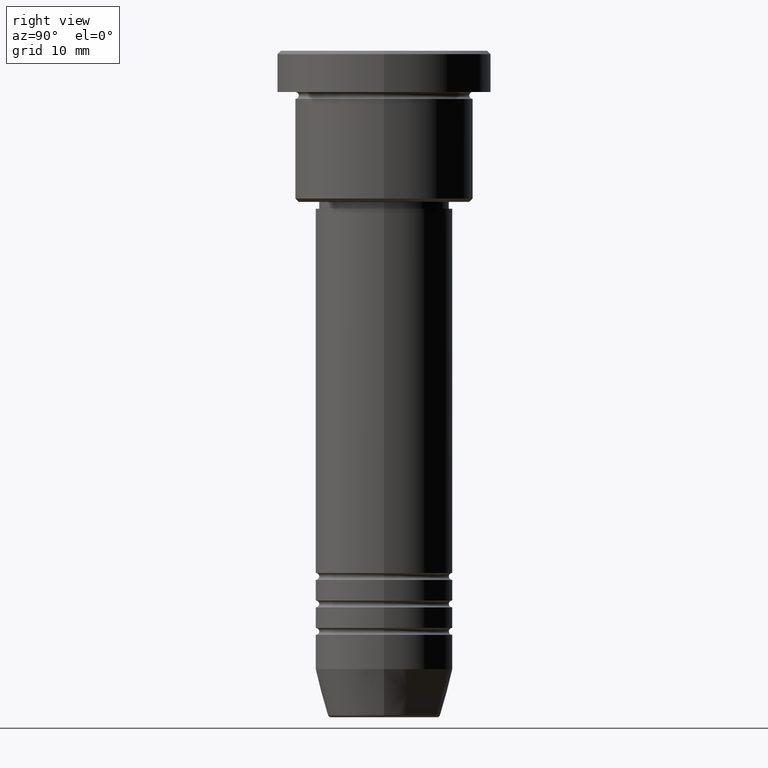
[diagram: clean part render]
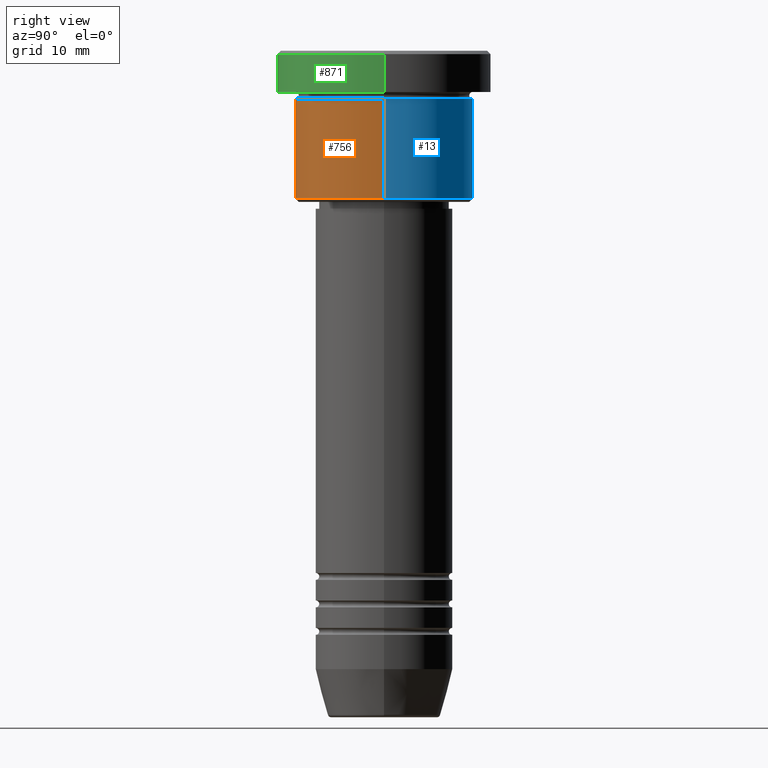
[diagram: same view with three faces highlighted in distinct colors, each labeled with its STEP entity id]
A machine part, right view with three faces highlighted in distinct colors.
Their STEP definitions:

[orange] entity #756 — the highlighted cylindrical surface (partial cylindrical patch) has radius 13 mm, axis along (-0, -0, 1).
#57 = CIRCLE ( 'NONE', #1114, 13.00000000000000178 ) ;
#133 = DIRECTION ( 'NONE',  ( -0.000000000000000000, -0.000000000000000000, 1.000000000000000000 ) ) ;
#156 = CIRCLE ( 'NONE', #711, 13.00000000000000178 ) ;
#172 = ORIENTED_EDGE ( 'NONE', *, *, #490, .F. ) ;
#240 = EDGE_CURVE ( 'NONE', #298, #316, #57, .T. ) ;
#272 = CARTESIAN_POINT ( 'NONE',  ( 0.000000000000000000, 0.000000000000000000, -21.50000000000000355 ) ) ;
#298 = VERTEX_POINT ( 'NONE', #1177 ) ;
#299 = DIRECTION ( 'NONE',  ( -0.000000000000000000, -0.000000000000000000, 1.000000000000000000 ) ) ;
#303 = ORIENTED_EDGE ( 'NONE', *, *, #630, .T. ) ;
#316 = VERTEX_POINT ( 'NONE', #830 ) ;
#322 = CARTESIAN_POINT ( 'NONE',  ( -13.00000000000000178, 1.592040838891559293E-15, -21.50000000000000355 ) ) ;
#446 = DIRECTION ( 'NONE',  ( 1.000000000000000000, 0.000000000000000000, 0.000000000000000000 ) ) ;
#448 = DIRECTION ( 'NONE',  ( -1.000000000000000000, 0.000000000000000000, 0.000000000000000000 ) ) ;
#490 = EDGE_CURVE ( 'NONE', #966, #298, #976, .T. ) ;
#569 = CYLINDRICAL_SURFACE ( 'NONE', #807, 13.00000000000000178 ) ;
#630 = EDGE_CURVE ( 'NONE', #966, #858, #156, .T. ) ;
#648 = CARTESIAN_POINT ( 'NONE',  ( 0.000000000000000000, 0.000000000000000000, 0.000000000000000000 ) ) ;
#655 = DIRECTION ( 'NONE',  ( 1.000000000000000000, 0.000000000000000000, 0.000000000000000000 ) ) ;
#677 = ORIENTED_EDGE ( 'NONE', *, *, #776, .T. ) ;
#691 = VECTOR ( 'NONE', #299, 1000.000000000000000 ) ;
#707 = DIRECTION ( 'NONE',  ( -0.000000000000000000, -0.000000000000000000, 1.000000000000000000 ) ) ;
#711 = AXIS2_PLACEMENT_3D ( 'NONE', #272, #707, #448 ) ;
#741 = ORIENTED_EDGE ( 'NONE', *, *, #240, .F. ) ;
#751 = EDGE_LOOP ( 'NONE', ( #172, #303, #677, #741 ) ) ;
#756 = ADVANCED_FACE ( 'NONE', ( #922 ), #569, .T. ) ;
#776 = EDGE_CURVE ( 'NONE', #858, #316, #835, .T. ) ;
#799 = CARTESIAN_POINT ( 'NONE',  ( 0.000000000000000000, 0.000000000000000000, -6.999999999999995559 ) ) ;
#807 = AXIS2_PLACEMENT_3D ( 'NONE', #648, #842, #655 ) ;
#830 = CARTESIAN_POINT ( 'NONE',  ( 13.00000000000000178, 0.000000000000000000, -6.999999999999995559 ) ) ;
#835 = LINE ( 'NONE', #1021, #691 ) ;
#842 = DIRECTION ( 'NONE',  ( -0.000000000000000000, -0.000000000000000000, 1.000000000000000000 ) ) ;
#858 = VERTEX_POINT ( 'NONE', #1017 ) ;
#872 = CARTESIAN_POINT ( 'NONE',  ( -13.00000000000000178, 1.592040838891559293E-15, 0.000000000000000000 ) ) ;
#874 = DIRECTION ( 'NONE',  ( -0.000000000000000000, -0.000000000000000000, 1.000000000000000000 ) ) ;
#922 = FACE_OUTER_BOUND ( 'NONE', #751, .T. ) ;
#966 = VERTEX_POINT ( 'NONE', #322 ) ;
#976 = LINE ( 'NONE', #872, #1073 ) ;
#1017 = CARTESIAN_POINT ( 'NONE',  ( 13.00000000000000178, 0.000000000000000000, -21.50000000000000355 ) ) ;
#1021 = CARTESIAN_POINT ( 'NONE',  ( 13.00000000000000178, 0.000000000000000000, 0.000000000000000000 ) ) ;
#1073 = VECTOR ( 'NONE', #133, 1000.000000000000000 ) ;
#1114 = AXIS2_PLACEMENT_3D ( 'NONE', #799, #874, #446 ) ;
#1177 = CARTESIAN_POINT ( 'NONE',  ( -13.00000000000000178, 1.592040838891559293E-15, -6.999999999999995559 ) ) ;

[blue] entity #13 — the highlighted cylindrical surface (partial cylindrical patch) has radius 13 mm, axis along (-0, -0, 1).
#13 = ADVANCED_FACE ( 'NONE', ( #1102 ), #390, .T. ) ;
#90 = CARTESIAN_POINT ( 'NONE',  ( 0.000000000000000000, 0.000000000000000000, 0.000000000000000000 ) ) ;
#133 = DIRECTION ( 'NONE',  ( -0.000000000000000000, -0.000000000000000000, 1.000000000000000000 ) ) ;
#165 = EDGE_CURVE ( 'NONE', #316, #298, #347, .T. ) ;
#173 = AXIS2_PLACEMENT_3D ( 'NONE', #90, #551, #758 ) ;
#264 = DIRECTION ( 'NONE',  ( -0.000000000000000000, -0.000000000000000000, 1.000000000000000000 ) ) ;
#298 = VERTEX_POINT ( 'NONE', #1177 ) ;
#299 = DIRECTION ( 'NONE',  ( -0.000000000000000000, -0.000000000000000000, 1.000000000000000000 ) ) ;
#316 = VERTEX_POINT ( 'NONE', #830 ) ;
#322 = CARTESIAN_POINT ( 'NONE',  ( -13.00000000000000178, 1.592040838891559293E-15, -21.50000000000000355 ) ) ;
#324 = ORIENTED_EDGE ( 'NONE', *, *, #165, .F. ) ;
#336 = EDGE_CURVE ( 'NONE', #858, #966, #1129, .T. ) ;
#347 = CIRCLE ( 'NONE', #997, 13.00000000000000178 ) ;
#390 = CYLINDRICAL_SURFACE ( 'NONE', #173, 13.00000000000000178 ) ;
#457 = EDGE_LOOP ( 'NONE', ( #475, #568, #324, #501 ) ) ;
#475 = ORIENTED_EDGE ( 'NONE', *, *, #336, .T. ) ;
#479 = AXIS2_PLACEMENT_3D ( 'NONE', #1107, #539, #924 ) ;
#490 = EDGE_CURVE ( 'NONE', #966, #298, #976, .T. ) ;
#501 = ORIENTED_EDGE ( 'NONE', *, *, #776, .F. ) ;
#515 = DIRECTION ( 'NONE',  ( 1.000000000000000000, 0.000000000000000000, 0.000000000000000000 ) ) ;
#539 = DIRECTION ( 'NONE',  ( -0.000000000000000000, -0.000000000000000000, 1.000000000000000000 ) ) ;
#551 = DIRECTION ( 'NONE',  ( -0.000000000000000000, -0.000000000000000000, 1.000000000000000000 ) ) ;
#568 = ORIENTED_EDGE ( 'NONE', *, *, #490, .T. ) ;
#691 = VECTOR ( 'NONE', #299, 1000.000000000000000 ) ;
#703 = CARTESIAN_POINT ( 'NONE',  ( 0.000000000000000000, 0.000000000000000000, -6.999999999999995559 ) ) ;
#758 = DIRECTION ( 'NONE',  ( 1.000000000000000000, 0.000000000000000000, 0.000000000000000000 ) ) ;
#776 = EDGE_CURVE ( 'NONE', #858, #316, #835, .T. ) ;
#830 = CARTESIAN_POINT ( 'NONE',  ( 13.00000000000000178, 0.000000000000000000, -6.999999999999995559 ) ) ;
#835 = LINE ( 'NONE', #1021, #691 ) ;
#858 = VERTEX_POINT ( 'NONE', #1017 ) ;
#872 = CARTESIAN_POINT ( 'NONE',  ( -13.00000000000000178, 1.592040838891559293E-15, 0.000000000000000000 ) ) ;
#924 = DIRECTION ( 'NONE',  ( -1.000000000000000000, 0.000000000000000000, 0.000000000000000000 ) ) ;
#966 = VERTEX_POINT ( 'NONE', #322 ) ;
#976 = LINE ( 'NONE', #872, #1073 ) ;
#997 = AXIS2_PLACEMENT_3D ( 'NONE', #703, #264, #515 ) ;
#1017 = CARTESIAN_POINT ( 'NONE',  ( 13.00000000000000178, 0.000000000000000000, -21.50000000000000355 ) ) ;
#1021 = CARTESIAN_POINT ( 'NONE',  ( 13.00000000000000178, 0.000000000000000000, 0.000000000000000000 ) ) ;
#1073 = VECTOR ( 'NONE', #133, 1000.000000000000000 ) ;
#1102 = FACE_OUTER_BOUND ( 'NONE', #457, .T. ) ;
#1107 = CARTESIAN_POINT ( 'NONE',  ( 0.000000000000000000, 0.000000000000000000, -21.50000000000000355 ) ) ;
#1129 = CIRCLE ( 'NONE', #479, 13.00000000000000178 ) ;
#1177 = CARTESIAN_POINT ( 'NONE',  ( -13.00000000000000178, 1.592040838891559293E-15, -6.999999999999995559 ) ) ;

[green] entity #871 — the highlighted cylindrical surface (partial cylindrical patch) has radius 15.5 mm, axis along (-0, -0, 1).
#12 = ORIENTED_EDGE ( 'NONE', *, *, #75, .F. ) ;
#24 = ORIENTED_EDGE ( 'NONE', *, *, #279, .T. ) ;
#50 = CARTESIAN_POINT ( 'NONE',  ( 15.50000000000000000, 0.000000000000000000, 0.000000000000000000 ) ) ;
#75 = EDGE_CURVE ( 'NONE', #359, #781, #591, .T. ) ;
#92 = CARTESIAN_POINT ( 'NONE',  ( 15.50000000000000000, 0.000000000000000000, -5.999999999999995559 ) ) ;
#97 = VECTOR ( 'NONE', #421, 1000.000000000000000 ) ;
#107 = CARTESIAN_POINT ( 'NONE',  ( -15.50000000000000000, 1.898202538678397557E-15, -0.4999999999999987232 ) ) ;
#121 = VERTEX_POINT ( 'NONE', #217 ) ;
#143 = LINE ( 'NONE', #50, #97 ) ;
#175 = CIRCLE ( 'NONE', #896, 15.50000000000000000 ) ;
#197 = CARTESIAN_POINT ( 'NONE',  ( 0.000000000000000000, 0.000000000000000000, 0.000000000000000000 ) ) ;
#217 = CARTESIAN_POINT ( 'NONE',  ( 15.50000000000000000, 0.000000000000000000, -0.4999999999999987232 ) ) ;
#236 = AXIS2_PLACEMENT_3D ( 'NONE', #197, #1124, #667 ) ;
#279 = EDGE_CURVE ( 'NONE', #359, #719, #175, .T. ) ;
#359 = VERTEX_POINT ( 'NONE', #451 ) ;
#360 = CARTESIAN_POINT ( 'NONE',  ( 0.000000000000000000, 0.000000000000000000, -0.4999999999999987232 ) ) ;
#399 = FACE_OUTER_BOUND ( 'NONE', #509, .T. ) ;
#400 = CARTESIAN_POINT ( 'NONE',  ( -15.50000000000000000, 1.898202538678397557E-15, 0.000000000000000000 ) ) ;
#421 = DIRECTION ( 'NONE',  ( -0.000000000000000000, -0.000000000000000000, 1.000000000000000000 ) ) ;
#425 = ORIENTED_EDGE ( 'NONE', *, *, #699, .T. ) ;
#430 = CARTESIAN_POINT ( 'NONE',  ( 0.000000000000000000, 0.000000000000000000, -5.999999999999995559 ) ) ;
#436 = DIRECTION ( 'NONE',  ( 1.000000000000000000, 0.000000000000000000, 0.000000000000000000 ) ) ;
#442 = CIRCLE ( 'NONE', #1115, 15.50000000000000000 ) ;
#451 = CARTESIAN_POINT ( 'NONE',  ( -15.50000000000000000, 1.898202538678397557E-15, -5.999999999999995559 ) ) ;
#509 = EDGE_LOOP ( 'NONE', ( #12, #24, #768, #425 ) ) ;
#591 = LINE ( 'NONE', #400, #708 ) ;
#667 = DIRECTION ( 'NONE',  ( 1.000000000000000000, 0.000000000000000000, 0.000000000000000000 ) ) ;
#699 = EDGE_CURVE ( 'NONE', #121, #781, #442, .T. ) ;
#708 = VECTOR ( 'NONE', #784, 1000.000000000000000 ) ;
#719 = VERTEX_POINT ( 'NONE', #92 ) ;
#768 = ORIENTED_EDGE ( 'NONE', *, *, #1005, .T. ) ;
#781 = VERTEX_POINT ( 'NONE', #107 ) ;
#784 = DIRECTION ( 'NONE',  ( -0.000000000000000000, -0.000000000000000000, 1.000000000000000000 ) ) ;
#871 = ADVANCED_FACE ( 'NONE', ( #399 ), #938, .T. ) ;
#896 = AXIS2_PLACEMENT_3D ( 'NONE', #430, #973, #1068 ) ;
#938 = CYLINDRICAL_SURFACE ( 'NONE', #236, 15.50000000000000000 ) ;
#973 = DIRECTION ( 'NONE',  ( -0.000000000000000000, -0.000000000000000000, 1.000000000000000000 ) ) ;
#1005 = EDGE_CURVE ( 'NONE', #719, #121, #143, .T. ) ;
#1068 = DIRECTION ( 'NONE',  ( 1.000000000000000000, 0.000000000000000000, 0.000000000000000000 ) ) ;
#1072 = DIRECTION ( 'NONE',  ( 0.000000000000000000, 0.000000000000000000, -1.000000000000000000 ) ) ;
#1115 = AXIS2_PLACEMENT_3D ( 'NONE', #360, #1072, #436 ) ;
#1124 = DIRECTION ( 'NONE',  ( -0.000000000000000000, -0.000000000000000000, 1.000000000000000000 ) ) ;